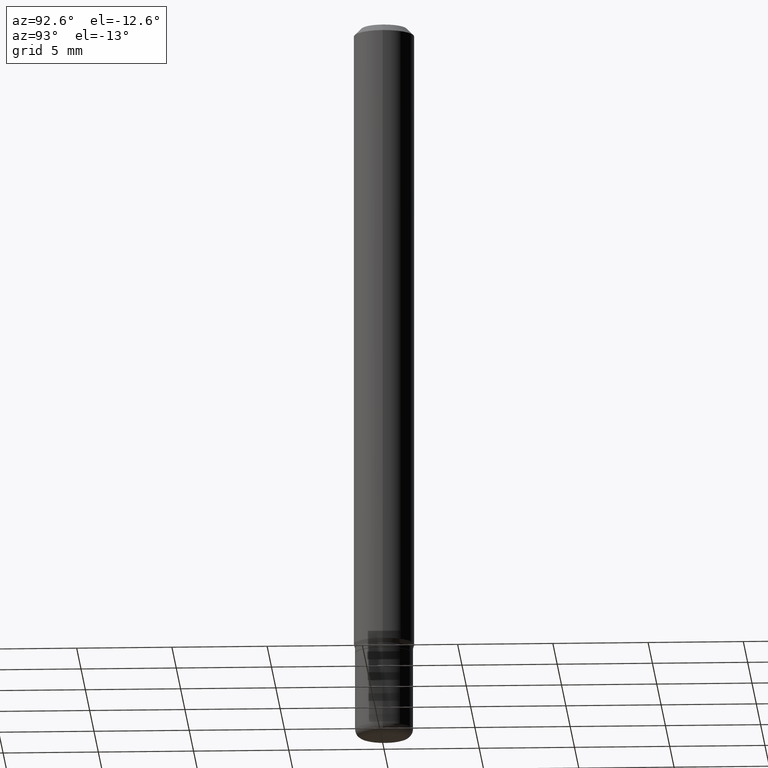
[diagram: clean part render]
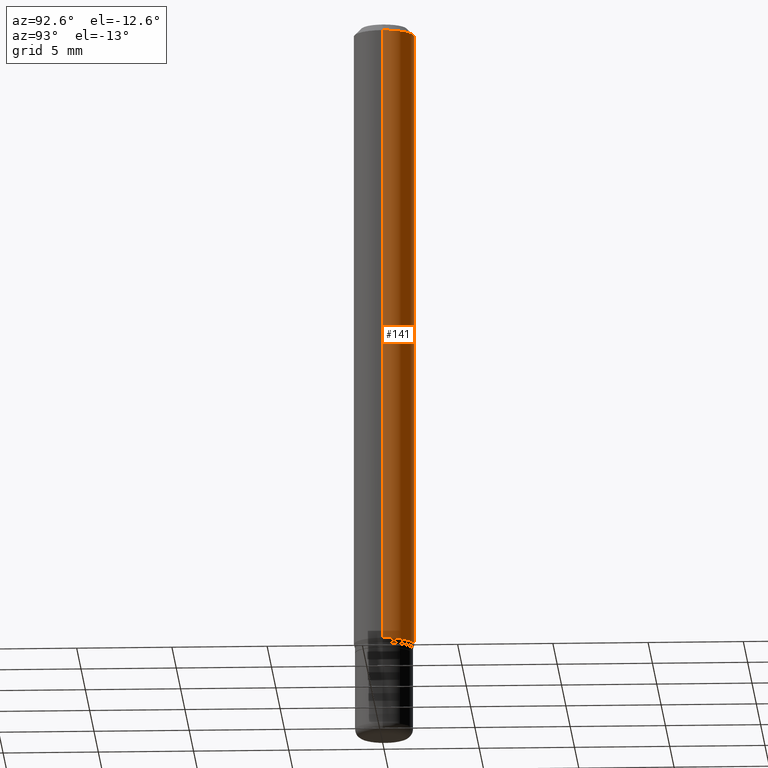
[diagram: same view with one face highlighted and labeled with its STEP entity id]
A machine part, auxiliary view. The second image highlights one B-rep face of the part: STEP entity #141.
In plain terms, the highlighted cylindrical surface (edge-blend (fillet) strip) has radius 1.5875 mm, axis along (-0, 0, 1).
Its self-contained STEP definition (entity closure, byte-faithful):
#32 = CARTESIAN_POINT ( 'NONE',  ( -0.06250000000000000000, -1.852729194945719842E-15, -0.01499999999999970281 ) ) ;
#40 = VERTEX_POINT ( 'NONE', #412 ) ;
#48 = DIRECTION ( 'NONE',  ( 1.000000000000000000, -6.982962677686266711E-15, 4.876176775795935793E-29 ) ) ;
#99 = CARTESIAN_POINT ( 'NONE',  ( 0.06250000000000000000, -4.888073874380378612E-16, -0.01499999999999970281 ) ) ;
#109 = DIRECTION ( 'NONE',  ( 1.000000000000000000, -6.982962677686266711E-15, 0.000000000000000000 ) ) ;
#115 = LINE ( 'NONE', #353, #290 ) ;
#141 = ADVANCED_FACE ( 'NONE', ( #406 ), #286, .T. ) ;
#148 = DIRECTION ( 'NONE',  ( -2.445468806185136877E-29, 3.491481338843145188E-15, 1.000000000000000000 ) ) ;
#154 = ORIENTED_EDGE ( 'NONE', *, *, #256, .T. ) ;
#168 = VECTOR ( 'NONE', #148, 39.37007874015748143 ) ;
#182 = CIRCLE ( 'NONE', #242, 0.06250000000000000000 ) ;
#185 = CARTESIAN_POINT ( 'NONE',  ( 3.180747601520010727E-29, -4.541264589508919020E-15, -1.300669872981078168 ) ) ;
#199 = ORIENTED_EDGE ( 'NONE', *, *, #426, .F. ) ;
#240 = ORIENTED_EDGE ( 'NONE', *, *, #443, .T. ) ;
#242 = AXIS2_PLACEMENT_3D ( 'NONE', #185, #502, #461 ) ;
#249 = DIRECTION ( 'NONE',  ( -2.445468806185136597E-29, 3.491481338843145583E-15, 1.000000000000000000 ) ) ;
#253 = CIRCLE ( 'NONE', #276, 0.06250000000000000000 ) ;
#256 = EDGE_CURVE ( 'NONE', #40, #280, #182, .T. ) ;
#276 = AXIS2_PLACEMENT_3D ( 'NONE', #317, #479, #109 ) ;
#280 = VERTEX_POINT ( 'NONE', #344 ) ;
#286 = CYLINDRICAL_SURFACE ( 'NONE', #460, 0.06250000000000000000 ) ;
#290 = VECTOR ( 'NONE', #438, 39.37007874015748143 ) ;
#303 = VERTEX_POINT ( 'NONE', #99 ) ;
#313 = CARTESIAN_POINT ( 'NONE',  ( 0.06250000000000000000, -4.364351673553916694E-16, 3.047610484872459871E-30 ) ) ;
#317 = CARTESIAN_POINT ( 'NONE',  ( 3.668203209277632395E-31, -5.237222008264614861E-17, -0.01499999999999970281 ) ) ;
#344 = CARTESIAN_POINT ( 'NONE',  ( -0.06250000000000000000, -4.097175379658856404E-15, -1.300669872981078168 ) ) ;
#352 = EDGE_LOOP ( 'NONE', ( #154, #240, #199, #513 ) ) ;
#353 = CARTESIAN_POINT ( 'NONE',  ( -0.06250000000000000000, 4.440892098500626162E-16, -3.074334431409316114E-30 ) ) ;
#393 = EDGE_CURVE ( 'NONE', #40, #303, #507, .T. ) ;
#396 = VERTEX_POINT ( 'NONE', #32 ) ;
#406 = FACE_OUTER_BOUND ( 'NONE', #352, .T. ) ;
#412 = CARTESIAN_POINT ( 'NONE',  ( 0.06250000000000000000, -4.977699756864310689E-15, -1.300669872981078168 ) ) ;
#426 = EDGE_CURVE ( 'NONE', #303, #396, #253, .T. ) ;
#438 = DIRECTION ( 'NONE',  ( -2.445468806185136877E-29, 3.491481338843145188E-15, 1.000000000000000000 ) ) ;
#443 = EDGE_CURVE ( 'NONE', #280, #396, #115, .T. ) ;
#448 = CARTESIAN_POINT ( 'NONE',  ( 0.000000000000000000, 0.000000000000000000, 0.000000000000000000 ) ) ;
#460 = AXIS2_PLACEMENT_3D ( 'NONE', #448, #249, #48 ) ;
#461 = DIRECTION ( 'NONE',  ( 1.000000000000000000, -6.982962677686262766E-15, 0.000000000000000000 ) ) ;
#479 = DIRECTION ( 'NONE',  ( -2.445468806185136597E-29, 3.491481338843145583E-15, 1.000000000000000000 ) ) ;
#502 = DIRECTION ( 'NONE',  ( -2.445468806185136597E-29, 3.491481338843145583E-15, 1.000000000000000000 ) ) ;
#507 = LINE ( 'NONE', #313, #168 ) ;
#513 = ORIENTED_EDGE ( 'NONE', *, *, #393, .F. ) ;